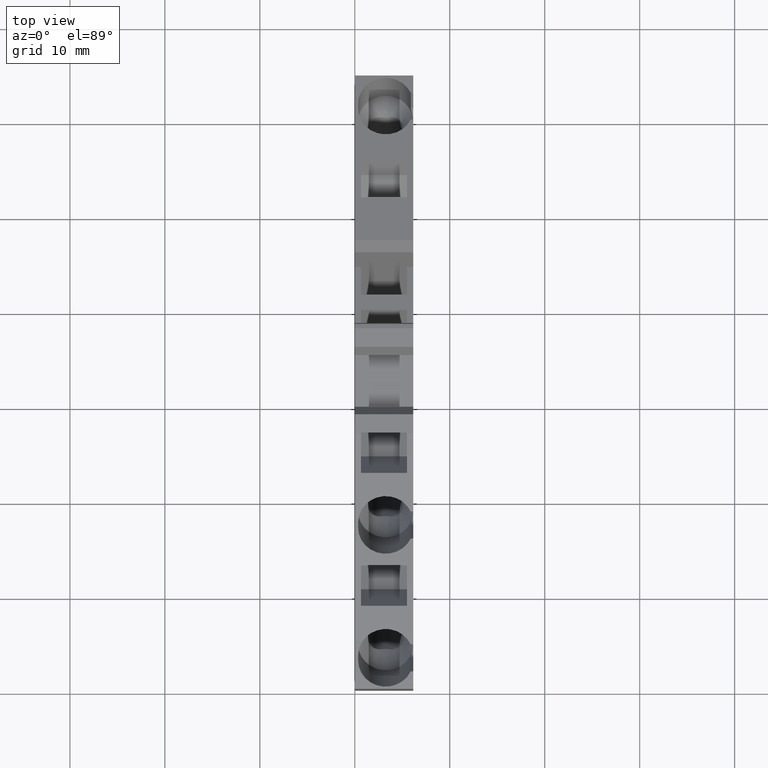
[diagram: clean part render]
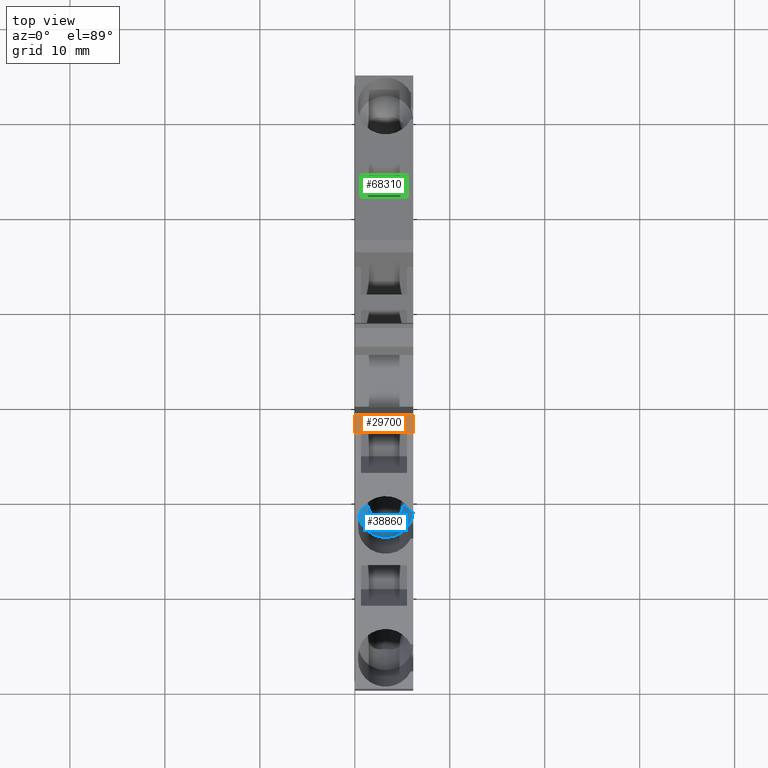
[diagram: same view with three faces highlighted in distinct colors, each labeled with its STEP entity id]
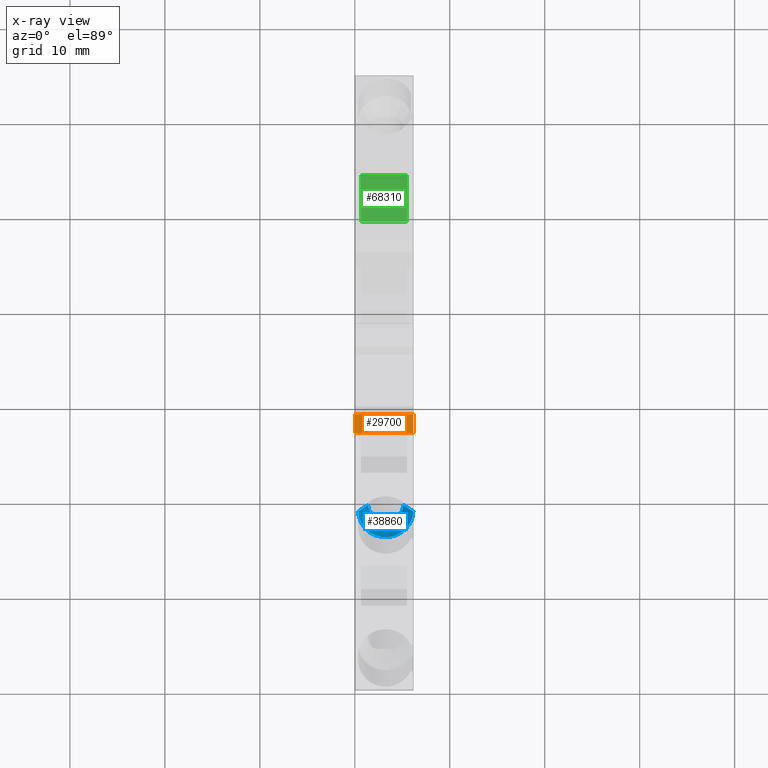
[diagram: x-ray of the same camera — body ghosted, the three highlighted faces saturated]
A machine part, top view with three faces highlighted in distinct colors.
The next image is the same camera in x-ray (body ghosted, the three faces saturated) — at least one of them is partly hidden behind the body in this view.
Their STEP definitions:

[orange] entity #29700 — the highlighted planar face has unit normal (-0, -0, 1).
#1230=CARTESIAN_POINT('',(-69.1244051443028,51.321087608707,
0.949999999999962));
#1240=DIRECTION('',(-1.20681242776754E-13,1.,-7.56143785790124E-15));
#1250=DIRECTION('',(1.,1.20681242776754E-13,-9.12712067340711E-28));
#1260=AXIS2_PLACEMENT_3D('',#1230,#1240,#1250);
#1270=PLANE('',#1260);
#6460=CARTESIAN_POINT('',(-80.1084383318848,51.3210876087057,
0.949999999999994));
#6470=VERTEX_POINT('',#6460);
#6500=CARTESIAN_POINT('',(-57.0914399670214,51.3210876087085,
0.949999999999994));
#6510=DIRECTION('',(-1.,-1.20681242776754E-13,0.));
#6520=VECTOR('',#6510,1.);
#6530=LINE('',#6500,#6520);
#6540=CARTESIAN_POINT('',(-78.1430649812728,51.321087608706,
0.949999999999994));
#6550=VERTEX_POINT('',#6540);
#6560=EDGE_CURVE('',#6550,#6470,#6530,.T.);
#12610=CARTESIAN_POINT('',(-78.1430649812728,51.3210876087059,
0.949999999999993));
#12620=DIRECTION('',(0.,7.56143785790124E-15,1.));
#12630=VECTOR('',#12620,1.);
#12640=LINE('',#12610,#12630);
#12650=CARTESIAN_POINT('',(-78.1430649812728,51.3210876087059,
-5.20000000000001));
#12660=VERTEX_POINT('',#12650);
#12670=EDGE_CURVE('',#12660,#6550,#12640,.T.);
#17700=CARTESIAN_POINT('',(-80.1084383318847,51.3210876087057,
-5.20000000000001));
#17710=VERTEX_POINT('',#17700);
#17740=CARTESIAN_POINT('',(-80.1084383318847,51.3210876087057,
0.949999999999993));
#17750=DIRECTION('',(-1.4415468661261E-31,7.56143785790124E-15,1.));
#17760=VECTOR('',#17750,1.);
#17770=LINE('',#17740,#17760);
#17780=CARTESIAN_POINT('',(-80.1084383318847,51.3210876087057,
-4.55000000000002));
#17790=VERTEX_POINT('',#17780);
#17800=EDGE_CURVE('',#17710,#17790,#17770,.T.);
#18020=CARTESIAN_POINT('',(-80.1084383318847,51.3210876087057,
0.299999999999982));
#18030=VERTEX_POINT('',#18020);
#18060=EDGE_CURVE('',#18030,#6470,#17770,.T.);
#29360=ORIENTED_EDGE('',*,*,#6560,.F.);
#29370=ORIENTED_EDGE('',*,*,#18060,.T.);
#29380=CARTESIAN_POINT('',(-57.0914399670214,51.3210876087085,
0.299999999999982));
#29390=DIRECTION('',(1.,1.20681242776754E-13,0.));
#29400=VECTOR('',#29390,1.);
#29410=LINE('',#29380,#29400);
#29420=CARTESIAN_POINT('',(-80.0565019597555,51.3210876087057,
0.299999999999982));
#29430=VERTEX_POINT('',#29420);
#29440=EDGE_CURVE('',#18030,#29430,#29410,.T.);
#29450=ORIENTED_EDGE('',*,*,#29440,.F.);
#29460=CARTESIAN_POINT('',(-80.0565019597555,51.3210876087057,
0.949999999999993));
#29470=DIRECTION('',(2.73193390181252E-15,-7.56143785790091E-15,-1.));
#29480=VECTOR('',#29470,1.);
#29490=LINE('',#29460,#29480);
#29500=CARTESIAN_POINT('',(-80.0565019597555,51.3210876087057,
-4.55000000000002));
#29510=VERTEX_POINT('',#29500);
#29520=EDGE_CURVE('',#29430,#29510,#29490,.T.);
#29530=ORIENTED_EDGE('',*,*,#29520,.F.);
#29540=CARTESIAN_POINT('',(-57.0914399670214,51.3210876087084,
-4.55000000000002));
#29550=DIRECTION('',(1.,1.20681242776754E-13,0.));
#29560=VECTOR('',#29550,1.);
#29570=LINE('',#29540,#29560);
#29580=EDGE_CURVE('',#17790,#29510,#29570,.T.);
#29590=ORIENTED_EDGE('',*,*,#29580,.T.);
#29600=ORIENTED_EDGE('',*,*,#17800,.T.);
#29610=CARTESIAN_POINT('',(-57.0914399670214,51.3210876087084,
-5.20000000000001));
#29620=DIRECTION('',(-1.,-1.20681242776754E-13,0.));
#29630=VECTOR('',#29620,1.);
#29640=LINE('',#29610,#29630);
#29650=EDGE_CURVE('',#12660,#17710,#29640,.T.);
#29660=ORIENTED_EDGE('',*,*,#29650,.T.);
#29670=ORIENTED_EDGE('',*,*,#12670,.F.);
#29680=EDGE_LOOP('',(#29670,#29660,#29600,#29590,#29530,#29450,#29370,
#29360));
#29690=FACE_OUTER_BOUND('',#29680,.T.);
#29700=ADVANCED_FACE('',(#29690),#1270,.T.);

[blue] entity #38860 — the highlighted conical surface has half-angle 28.301 deg.
#6050=CARTESIAN_POINT('',(-88.2106123818847,42.7319952275153,
0.949999999999994));
#6060=VERTEX_POINT('',#6050);
#9990=CARTESIAN_POINT('',(-88.7586534182273,44.2377255998011,
1.81281181189989));
#10000=DIRECTION('',(-0.30113885178948,0.827372195412126,
0.474099823035014));
#10010=VECTOR('',#10000,7.93675008737977);
#10020=LINE('',#9990,#10010);
#10030=CARTESIAN_POINT('',(-87.5436731023995,40.8995946169828,
-0.100000000000005));
#10040=VERTEX_POINT('',#10030);
#10050=EDGE_CURVE('',#10040,#6060,#10020,.T.);
#10500=CARTESIAN_POINT('',(-88.2106123818846,42.7319952275152,
-4.84999999999997));
#10510=VERTEX_POINT('',#10500);
#13030=CARTESIAN_POINT('',(-87.5436731023995,40.8995946169828,-3.8));
#13040=VERTEX_POINT('',#13030);
#25780=CARTESIAN_POINT('',(-88.3985509060345,42.6635911988528,
0.943095228298419));
#25790=VERTEX_POINT('',#25780);
#25820=CARTESIAN_POINT('',(-88.2106123818847,42.7319952275153,
-1.95000000000001));
#25830=DIRECTION('',(0.342020143325655,-0.939692620785913,
3.57099154978097E-15));
#25840=DIRECTION('',(1.15466216469529E-15,-3.37990717439375E-15,-1.));
#25850=AXIS2_PLACEMENT_3D('',#25820,#25830,#25840);
#25860=CIRCLE('',#25850,2.9);
#25870=EDGE_CURVE('',#6060,#25790,#25860,.T.);
#26060=CARTESIAN_POINT('',(-88.2106123818846,42.7319952275153,
-1.95000000000001));
#26070=DIRECTION('',(-0.342020143325662,0.939692620785911,
-3.52120158727582E-15));
#26080=DIRECTION('',(-0.939692620785911,-0.342020143325662,0.));
#26090=AXIS2_PLACEMENT_3D('',#26060,#26070,#26080);
#26100=CIRCLE('',#26090,2.9);
#26110=EDGE_CURVE('',#10510,#25790,#26100,.T.);
#28420=CARTESIAN_POINT('',(-88.7586534182272,44.2377255998011,
-5.71281181189992));
#28430=DIRECTION('',(-0.301138851789491,0.827372195412119,
-0.474099823035021));
#28440=VECTOR('',#28430,7.93675008737977);
#28450=LINE('',#28420,#28440);
#28460=EDGE_CURVE('',#13040,#10510,#28450,.T.);
#35080=CARTESIAN_POINT('',(-88.4445002090498,39.1350803711006,-2.35));
#35090=DIRECTION('',(0.939692620785908,0.342020143325669,
-7.09688205487581E-17));
#35100=DIRECTION('',(1.17560485838368E-15,-3.43744675240515E-15,-1.));
#35110=AXIS2_PLACEMENT_3D('',#35080,#35090,#35100);
#35120=PLANE('',#35110);
#35270=CARTESIAN_POINT('',(-88.6865572281765,39.8001265653745,
-1.55000000002298));
#35280=VERTEX_POINT('',#35270);
#35310=CARTESIAN_POINT('',(-88.7586534182272,44.2377255998011,
-1.95000000000002));
#35320=DIRECTION('',(-0.342020143325666,0.939692620785909,
-3.17747699199041E-15));
#35330=DIRECTION('',(1.15466216469529E-15,-3.37990717439375E-15,-1.));
#35340=AXIS2_PLACEMENT_3D('',#35310,#35320,#35330);
#35350=CONICAL_SURFACE('',#35340,3.76281181189991,0.493941368919582);
#35360=CARTESIAN_POINT('',(-88.6865572281739,39.8001265653754,
-1.54999999999891));
#35370=CARTESIAN_POINT('',(-88.6839336827886,39.7929184336706,
-1.56553194654473));
#35380=CARTESIAN_POINT('',(-88.6814188134081,39.7860088868237,
-1.58126165919315));
#35390=CARTESIAN_POINT('',(-88.6790297514269,39.7794449929765,
-1.59716996426377));
#35400=CARTESIAN_POINT('',(-88.6766406947131,39.7728811136018,
-1.61307823425879));
#35410=CARTESIAN_POINT('',(-88.6743775030536,39.7666630456214,
-1.62916493889792));
#35420=CARTESIAN_POINT('',(-88.6722564708139,39.7608355574369,
-1.64540833484184));
#35430=CARTESIAN_POINT('',(-88.6701354404669,39.7550080744523,
-1.66165171629174));
#35440=CARTESIAN_POINT('',(-88.6681566419944,39.7495713703315,
-1.67805150462907));
#35450=CARTESIAN_POINT('',(-88.6663349756648,39.7445663832251,
-1.6945835391543));
#35460=CARTESIAN_POINT('',(-88.6645133070314,39.7395613897893,
-1.71111559458636));
#35470=CARTESIAN_POINT('',(-88.6628488505381,39.7349883331785,
-1.72777945344223));
#35480=CARTESIAN_POINT('',(-88.6613545104627,39.7308826675643,
-1.74454930083497));
#35490=CARTESIAN_POINT('',(-88.6598601636992,39.7267769835748,
-1.76131922328249));
#35500=CARTESIAN_POINT('',(-88.6585360070672,39.7231388931093,
-1.77819452402193));
#35510=CARTESIAN_POINT('',(-88.6573924108137,39.7199968882257,
-1.79514934468555));
#35520=CARTESIAN_POINT('',(-88.6562486485195,39.7168544271491,
-1.81210662704778));
#35530=CARTESIAN_POINT('',(-88.6552860155489,39.7142096147985,
-1.82913255848731));
#35540=CARTESIAN_POINT('',(-88.6545106934542,39.7120794348503,
-1.84623280338465));
#35550=CARTESIAN_POINT('',(-88.6537348842863,39.7099479166799,
-1.86334379100214));
#35560=CARTESIAN_POINT('',(-88.6531449313298,39.7083270342531,
-1.88057471594065));
#35570=CARTESIAN_POINT('',(-88.6527500619597,39.7072421395751,
-1.89788129328766));
#35580=CARTESIAN_POINT('',(-88.6523551984306,39.7061572609453,
-1.91518761462923));
#35590=CARTESIAN_POINT('',(-88.6521555293132,39.7056086745538,
-1.93256807225222));
#35600=CARTESIAN_POINT('',(-88.6521552962733,39.705608034282,
-1.94996942840299));
#35610=CARTESIAN_POINT('',(-88.652155063235,39.7056073940145,
-1.96737066813759));
#35620=CARTESIAN_POINT('',(-88.6523542932978,39.7061547741134,
-1.98479111945756));
#35630=CARTESIAN_POINT('',(-88.6527513253217,39.7072456106338,
-2.00217404877538));
#35640=CARTESIAN_POINT('',(-88.6531483575441,39.7083364476998,
-2.01955698678781));
#35650=CARTESIAN_POINT('',(-88.6537431308983,39.70997057406,
-2.0369007609037));
#35660=CARTESIAN_POINT('',(-88.6545280987166,39.712127255416,
-2.05415037739948));
#35670=CARTESIAN_POINT('',(-88.6553130722074,39.7142839523567,
-2.07140011854618));
#35680=CARTESIAN_POINT('',(-88.6562881102604,39.7169628473903,
-2.08855429549158));
#35690=CARTESIAN_POINT('',(-88.6574406499648,39.7201294242032,
-2.10556421771372));
#35700=CARTESIAN_POINT('',(-88.6585932112739,39.7232960603746,
-2.12257445879291));
#35710=CARTESIAN_POINT('',(-88.6599230783093,39.7269498400252,
-2.13943903410365));
#35720=CARTESIAN_POINT('',(-88.6614142641629,39.731046839486,
-2.15612020019449));
#35730=CARTESIAN_POINT('',(-88.6629057942265,39.7351447846563,
-2.17280521679534));
#35740=CARTESIAN_POINT('',(-88.6645646266701,39.7397023893477,
-2.18937482190728));
#35750=CARTESIAN_POINT('',(-88.6663791041845,39.7446876253465,
-2.20581663320075));
#35760=CARTESIAN_POINT('',(-88.6681935766493,39.7496728474718,
-2.22225839873787));
#35770=CARTESIAN_POINT('',(-88.670163653771,39.7550855898683,
-2.23857212368332));
#35780=CARTESIAN_POINT('',(-88.6722765366425,39.7608906878478,
-2.25474529719056));
#35790=CARTESIAN_POINT('',(-88.6765023539528,39.7725010254867,
-2.28709203892931));
#35800=CARTESIAN_POINT('',(-88.6812996460207,39.7856814771177,
-2.31887399563623));
#35810=CARTESIAN_POINT('',(-88.6865572281833,39.8001265653904,
-2.34999999999969));
#35820=B_SPLINE_CURVE_WITH_KNOTS('',3,(#35360,#35370,#35380,#35390,
#35400,#35410,#35420,#35430,#35440,#35450,#35460,#35470,#35480,#35490,
#35500,#35510,#35520,#35530,#35540,#35550,#35560,#35570,#35580,#35590,
#35600,#35610,#35620,#35630,#35640,#35650,#35660,#35670,#35680,#35690,
#35700,#35710,#35720,#35730,#35740,#35750,#35760,#35770,#35780,#35790,
#35800,#35810),.UNSPECIFIED.,.F.,.F.,(4,3,3,3,3,3,3,3,3,3,3,3,3,3,3,4),(
0.,0.0520562471891187,0.104206738623829,0.156346818535445,
0.208398282271411,0.260315289942428,0.312097472864514,0.364011053994154,
0.416137834399924,0.468381223136949,0.52062588421083,0.572748889666363,
0.624630450345578,0.676410451165593,0.728294526185148,0.832336805167444)
,.UNSPECIFIED.);
#35830=SURFACE_CURVE('',#35820,(#35120,#35350),.CURVE_3D.);
#35840=CARTESIAN_POINT('',(-88.6865572281738,39.8001265653671,
-2.34999999996126));
#35850=VERTEX_POINT('',#35840);
#35860=EDGE_CURVE('',#35280,#35850,#35830,.T.);
#36850=CARTESIAN_POINT('',(-78.4158144198055,15.821008998583,
-1.54999999999991));
#36860=DIRECTION('',(0.342020143325669,-0.939692620785908,
3.63598040564739E-15));
#36870=DIRECTION('',(-0.939692620785908,-0.342020143325669,0.));
#36880=AXIS2_PLACEMENT_3D('',#36850,#36860,#36870);
#36890=CYLINDRICAL_SURFACE('',#36880,1.45);
#36900=CARTESIAN_POINT('',(-87.5436731024272,40.8995946170589,
-0.0999999999782113));
#36910=CARTESIAN_POINT('',(-87.5669083153754,40.8911376911589,
-0.0999999999782115));
#36920=CARTESIAN_POINT('',(-87.5901157656968,40.8824204471941,
-0.10063291356414));
#36930=CARTESIAN_POINT('',(-87.6132471793451,40.8734572658746,
-0.10190577915668));
#36940=CARTESIAN_POINT('',(-87.6363783882159,40.8644941639042,
-0.103178633480812));
#36950=CARTESIAN_POINT('',(-87.6594327275864,40.8552854178907,
-0.105091463278277));
#36960=CARTESIAN_POINT('',(-87.6823582381823,40.8458489745759,
-0.107645233738802));
#36970=CARTESIAN_POINT('',(-87.7052836713283,40.8364125631404,
-0.110198995571844));
#36980=CARTESIAN_POINT('',(-87.7280797458687,40.8267486571717,
-0.113393672930841));
#36990=CARTESIAN_POINT('',(-87.7506937427362,40.816877965957,
-0.117223556163721));
#37000=CARTESIAN_POINT('',(-87.7733077103922,40.8070072874928,
-0.121053434449381));
#37010=CARTESIAN_POINT('',(-87.7957390695215,40.7969300481516,
-0.125518441189416));
#37020=CARTESIAN_POINT('',(-87.8179361817579,40.7866691305977,
-0.130606052930429));
#37030=CARTESIAN_POINT('',(-87.8401333097038,40.7764082057818,
-0.135693668272076));
#37040=CARTESIAN_POINT('',(-87.8620956772163,40.7659638407178,
-0.141403762421673));
#37050=CARTESIAN_POINT('',(-87.8837744042988,40.7553603915994,
-0.147717295413073));
#37060=CARTESIAN_POINT('',(-87.9054531901994,40.744756913712,
-0.154030845534177));
#37070=CARTESIAN_POINT('',(-87.9268478560114,40.7339945953176,
-0.160947664930302));
#37080=CARTESIAN_POINT('',(-87.9479137948324,40.7230984592159,
-0.168442914711022));
#37090=CARTESIAN_POINT('',(-87.9689798351842,40.7122022705984,
-0.175938200616388));
#37100=CARTESIAN_POINT('',(-87.9897167180287,40.7011725052479,
-0.184011711140266));
#37110=CARTESIAN_POINT('',(-88.010085458329,40.6900339350926,
-0.192633943912855));
#37120=CARTESIAN_POINT('',(-88.0304444808141,40.6789006790886,
-0.20125206306506));
#37130=CARTESIAN_POINT('',(-88.0504583832968,40.667647604041,
-0.210425088626791));
#37140=CARTESIAN_POINT('',(-88.0702080678938,40.6562268883079,
-0.220189655102602));
#37150=CARTESIAN_POINT('',(-88.0899483771773,40.6448115940686,
-0.229949586270404));
#37160=CARTESIAN_POINT('',(-88.109382764749,40.6332517950369,
-0.240282652054943));
#37170=CARTESIAN_POINT('',(-88.1284722412412,40.6215674830271,
-0.251168960098915));
#37180=CARTESIAN_POINT('',(-88.1475616551522,40.6098832093221,
-0.262055232454126));
#37190=CARTESIAN_POINT('',(-88.1663058002978,40.5980746203543,
-0.273494580871365));
#37200=CARTESIAN_POINT('',(-88.1846668755776,40.5861634806103,
-0.285461580350175));
#37210=CARTESIAN_POINT('',(-88.203027921975,40.5742523596028,
-0.297428561004698));
#37220=CARTESIAN_POINT('',(-88.2210055552495,40.5622388970347,
-0.309922987167482));
#37230=CARTESIAN_POINT('',(-88.2385645728759,40.5501460286919,
-0.322914282910818));
#37240=CARTESIAN_POINT('',(-88.2561235908413,40.5380531601157,
-0.335905578904979));
#37250=CARTESIAN_POINT('',(-88.2732636751665,40.5258810992239,
-0.349393508224076));
#37260=CARTESIAN_POINT('',(-88.2899533726966,40.5136533363534,
-0.363342994385398));
#37270=CARTESIAN_POINT('',(-88.3066430962574,40.5014255544112,
-0.377292502303625));
#37280=CARTESIAN_POINT('',(-88.3228821485027,40.4891422819093,
-0.391703308796236));
#37290=CARTESIAN_POINT('',(-88.3386437285916,40.476826933755,
-0.406536726936289));
#37300=CARTESIAN_POINT('',(-88.3544053577937,40.4645115472261,
-0.421370191297354));
#37310=CARTESIAN_POINT('',(-88.3696892700195,40.4521642889113,
-0.436625995630711));
#37320=CARTESIAN_POINT('',(-88.3844739830607,40.4398078504404,
-0.452262957079352));
#37330=CARTESIAN_POINT('',(-88.3992649109841,40.4274462178335,
-0.467906491660108));
#37340=CARTESIAN_POINT('',(-88.413531024602,40.4150979384384,
-0.483901692312404));
#37350=CARTESIAN_POINT('',(-88.427328004405,40.4027204875086,
-0.500290514676759));
#37360=CARTESIAN_POINT('',(-88.4411320747439,40.3903366755664,
-0.516687759575227));
#37370=CARTESIAN_POINT('',(-88.4544836326206,40.3779068567397,
-0.533502465153732));
#37380=CARTESIAN_POINT('',(-88.4673614436251,40.365447472864,
-0.550706286338582));
#37390=CARTESIAN_POINT('',(-88.4802392155586,40.3529881267899,
-0.567910055327353));
#37400=CARTESIAN_POINT('',(-88.4926430702684,40.3404993517616,
-0.585502762796131));
#37410=CARTESIAN_POINT('',(-88.5045535604694,40.3279986499541,
-0.603452383217878));
#37420=CARTESIAN_POINT('',(-88.5164640286944,40.3154979712115,
-0.621401970520973));
#37430=CARTESIAN_POINT('',(-88.5278809766594,40.3029855078733,
-0.639708269371854));
#37440=CARTESIAN_POINT('',(-88.5387876133543,40.2904793630033,
-0.658336094221533));
#37450=CARTESIAN_POINT('',(-88.5496942419102,40.277973227466,
-0.676963905170061));
#37460=CARTESIAN_POINT('',(-88.5600904223522,40.2654735539983,
-0.695913024205661));
#37470=CARTESIAN_POINT('',(-88.5699626744589,40.2529986132457,
-0.715145736712213));
#37480=CARTESIAN_POINT('',(-88.5798349294219,40.2405236688838,
-0.73437845478329));
#37490=CARTESIAN_POINT('',(-88.5891831407785,40.2280735985371,
-0.753894538787913));
#37500=CARTESIAN_POINT('',(-88.5979975935115,40.215666433673,
-0.773654463276853));
#37510=CARTESIAN_POINT('',(-88.6068120576669,40.2032592527308,
-0.793414413372029));
#37520=CARTESIAN_POINT('',(-88.6150926710124,40.1908951132882,
-0.813417972867382));
#37530=CARTESIAN_POINT('',(-88.6228337519165,40.1785914234656,
-0.833624597680463));
#37540=CARTESIAN_POINT('',(-88.6305748507178,40.1662877051969,
-0.853831269211033));
#37550=CARTESIAN_POINT('',(-88.6377763487027,40.1540445648397,
-0.87424077685061));
#37560=CARTESIAN_POINT('',(-88.6444366897621,40.1418784190787,
-0.89481241886434));
#37570=CARTESIAN_POINT('',(-88.6510992521167,40.1297082157772,
-0.915390921741825));
#37580=CARTESIAN_POINT('',(-88.6572121841929,40.1176323740222,
-0.936101588004782));
#37590=CARTESIAN_POINT('',(-88.6628009739507,40.105617003574,
-0.956989458141399));
#37600=CARTESIAN_POINT('',(-88.6683928961843,40.0935948985985,
-0.9778890357764));
#37610=CARTESIAN_POINT('',(-88.6734682141701,40.0816131546787,
-0.999001838699019));
#37620=CARTESIAN_POINT('',(-88.678020386188,40.0696841960883,
-1.02029862191304));
#37630=CARTESIAN_POINT('',(-88.6871247793511,40.0458261501695,
-1.06289241817708));
#37640=CARTESIAN_POINT('',(-88.6941337487332,40.0221800864515,
-1.10622171343024));
#37650=CARTESIAN_POINT('',(-88.6990215225219,39.99884889756,
-1.15003337593206));
#37660=CARTESIAN_POINT('',(-88.7039092691479,39.9755178383262,
-1.19384479496068));
#37670=CARTESIAN_POINT('',(-88.7066750299264,39.9525042494182,
-1.23813357698696));
#37680=CARTESIAN_POINT('',(-88.7073354398563,39.929910018346,
-1.28263183268818));
#37690=CARTESIAN_POINT('',(-88.7079958522804,39.9073157019392,
-1.32713025645175));
#37700=CARTESIAN_POINT('',(-88.7065509292552,39.8851431642103,
-1.37183310363159));
#37710=CARTESIAN_POINT('',(-88.7030618106713,39.8634862240054,
-1.41647445019776));
#37720=CARTESIAN_POINT('',(-88.7013172630327,39.8526578262352,
-1.43879497438269));
#37730=CARTESIAN_POINT('',(-88.6990623790797,39.8419583913006,
-1.46109979346834));
#37740=CARTESIAN_POINT('',(-88.6963086747149,39.8313985712186,
-1.48335689515961));
#37750=CARTESIAN_POINT('',(-88.6935536231298,39.8208335848578,
-1.50562488589962));
#37760=CARTESIAN_POINT('',(-88.6903082613107,39.8104324442074,
-1.52779308627421));
#37770=CARTESIAN_POINT('',(-88.686557228182,39.800126565387,
-1.55000000000698));
#37780=B_SPLINE_CURVE_WITH_KNOTS('',3,(#36900,#36910,#36920,#36930,
#36940,#36950,#36960,#36970,#36980,#36990,#37000,#37010,#37020,#37030,
#37040,#37050,#37060,#37070,#37080,#37090,#37100,#37110,#37120,#37130,
#37140,#37150,#37160,#37170,#37180,#37190,#37200,#37210,#37220,#37230,
#37240,#37250,#37260,#37270,#37280,#37290,#37300,#37310,#37320,#37330,
#37340,#37350,#37360,#37370,#37380,#37390,#37400,#37410,#37420,#37430,
#37440,#37450,#37460,#37470,#37480,#37490,#37500,#37510,#37520,#37530,
#37540,#37550,#37560,#37570,#37580,#37590,#37600,#37610,#37620,#37630,
#37640,#37650,#37660,#37670,#37680,#37690,#37700,#37710,#37720,#37730,
#37740,#37750,#37760,#37770),.UNSPECIFIED.,.F.,.F.,(4,3,3,3,3,3,3,3,3,3,
3,3,3,3,3,3,3,3,3,3,3,3,3,3,3,3,3,3,3,4),(0.,0.0743555749852129,
0.149007589206085,0.223855697112997,0.298786612412892,0.3736806696044,
0.448417774855967,0.522883453549961,0.597168598828251,0.671714049263338,
0.746470819433595,0.821345499879491,0.896233919713719,0.971026095550186,
1.0456110057677,1.11990593704048,1.19430240407896,1.26892770751136,
1.34371399540713,1.41858124019815,1.49344091298828,1.56819938025803,
1.64276121056498,1.71705165302732,1.79142757907284,1.94077424925286,
2.09050139518308,2.24002668112541,2.31452030455593,2.38878420540838),
.UNSPECIFIED.);
#37790=SURFACE_CURVE('',#37780,(#36890,#35350),.CURVE_3D.);
#37800=EDGE_CURVE('',#10040,#35280,#37790,.T.);
#37810=ORIENTED_EDGE('',*,*,#37800,.T.);
#37820=ORIENTED_EDGE('',*,*,#10050,.F.);
#37830=ORIENTED_EDGE('',*,*,#25870,.F.);
#37840=ORIENTED_EDGE('',*,*,#26110,.T.);
#37850=ORIENTED_EDGE('',*,*,#28460,.T.);
#37860=CARTESIAN_POINT('',(-78.4158144198055,15.821008998583,
-2.34999999999991));
#37870=DIRECTION('',(0.342020143325669,-0.939692620785908,
3.58046925441613E-15));
#37880=DIRECTION('',(-0.939692620785908,-0.342020143325669,0.));
#37890=AXIS2_PLACEMENT_3D('',#37860,#37870,#37880);
#37900=CYLINDRICAL_SURFACE('',#37890,1.45);
#37910=CARTESIAN_POINT('',(-88.6865572281824,39.8001265653886,
-2.34999999999941));
#37920=CARTESIAN_POINT('',(-88.6940887154484,39.8208191565872,
-2.39458800609437));
#37930=CARTESIAN_POINT('',(-88.6996340744898,39.8420775807983,
-2.43940608875098));
#37940=CARTESIAN_POINT('',(-88.7031145581065,39.863814637276,
-2.48420242984976));
#37950=CARTESIAN_POINT('',(-88.706595026937,39.8855516014082,
-2.52899858064061));
#37960=CARTESIAN_POINT('',(-88.7080101484219,39.9077650860223,
-2.5737683627429));
#37970=CARTESIAN_POINT('',(-88.7073220245074,39.9303595590232,
-2.61825337971097));
#37980=CARTESIAN_POINT('',(-88.706633897643,39.9529541288837,
-2.66273858738088));
#37990=CARTESIAN_POINT('',(-88.7038427663449,39.975927386963,
-2.70693434606679));
#38000=CARTESIAN_POINT('',(-88.6989517010227,39.9991815184201,
-2.75059115194932));
#38010=CARTESIAN_POINT('',(-88.6965061824023,40.0108085173931,
-2.77241942956517));
#38020=CARTESIAN_POINT('',(-88.6935363397342,40.0225055171333,
-2.79411278015358));
#38030=CARTESIAN_POINT('',(-88.690045959486,40.0342605315416,
-2.81564181801782));
#38040=CARTESIAN_POINT('',(-88.6865537964963,40.0460215499236,
-2.83718185202155));
#38050=CARTESIAN_POINT('',(-88.6825514807252,40.0578123801417,
-2.85850701468572));
#38060=CARTESIAN_POINT('',(-88.678010455145,40.069710218279,
-2.87974783509185));
#38070=CARTESIAN_POINT('',(-88.6734693921811,40.0816081543645,
-2.90098883036166));
#38080=CARTESIAN_POINT('',(-88.6683910835255,40.0936024451291,
-2.92212504970267));
#38090=CARTESIAN_POINT('',(-88.662772412934,40.1056783977633,
-2.94311726884374));
#38100=CARTESIAN_POINT('',(-88.657153757201,40.1177543184627,
-2.96410943247087));
#38110=CARTESIAN_POINT('',(-88.6509947758814,40.1299117892603,
-2.9849573829279));
#38120=CARTESIAN_POINT('',(-88.6442961627779,40.1421349783728,
-3.00562135195394));
#38130=CARTESIAN_POINT('',(-88.6375975610187,40.1543581467852,
-3.02628528598524));
#38140=CARTESIAN_POINT('',(-88.6303593849263,40.1666469135459,
-3.04676502028085));
#38150=CARTESIAN_POINT('',(-88.6225861900867,40.178984627558,
-3.06702106730771));
#38160=CARTESIAN_POINT('',(-88.6148130012338,40.1913223320681,
-3.0872770987343));
#38170=CARTESIAN_POINT('',(-88.6065048721348,40.2037088575576,
-3.10730922381107));
#38180=CARTESIAN_POINT('',(-88.5976701131313,40.2161270675959,
-3.1270790091106));
#38190=CARTESIAN_POINT('',(-88.5888353527009,40.2285452796396,
-3.14684879760285));
#38200=CARTESIAN_POINT('',(-88.5794740613727,40.2409950459233,
-3.16635603155185));
#38210=CARTESIAN_POINT('',(-88.5695980318594,40.2534590997539,
-3.18556405284194));
#38220=CARTESIAN_POINT('',(-88.5597219911438,40.2659231677224,
-3.20477209591966));
#38230=CARTESIAN_POINT('',(-88.5493313304575,40.2784013917132,
-3.22368072169217));
#38240=CARTESIAN_POINT('',(-88.5384408758521,40.290876756439,
-3.2422557094955));
#38250=CARTESIAN_POINT('',(-88.5275503975501,40.30335214831,
-3.26083073771619));
#38260=CARTESIAN_POINT('',(-88.516160260339,40.3158245517452,
-3.279071940109));
#38270=CARTESIAN_POINT('',(-88.5042876838153,40.3282776139488,
-3.29694812174058));
#38280=CARTESIAN_POINT('',(-88.4924150342252,40.3407307527913,
-3.31482441338618));
#38290=CARTESIAN_POINT('',(-88.4800602484044,40.3531642747411,
-3.33233530657479));
#38300=CARTESIAN_POINT('',(-88.4672416451803,40.3655633649331,
-3.34945372635501));
#38310=CARTESIAN_POINT('',(-88.4544206191091,40.37796479868,
-3.36657538169175));
#38320=CARTESIAN_POINT('',(-88.4410766407255,40.3903886846987,
-3.38338290248824));
#38330=CARTESIAN_POINT('',(-88.4272235184001,40.4028142146432,
-3.39983358140281));
#38340=CARTESIAN_POINT('',(-88.4133704536378,40.4152396929566,
-3.41628419196077));
#38350=CARTESIAN_POINT('',(-88.3990084250895,40.4276666318216,
-3.43237768736875));
#38360=CARTESIAN_POINT('',(-88.3841567151292,40.4400729441964,
-3.44807246001639));
#38370=CARTESIAN_POINT('',(-88.3693050443584,40.4524792238343,
-3.46376719124982));
#38380=CARTESIAN_POINT('',(-88.353963912857,40.4648646822057,
-3.47906293014947));
#38390=CARTESIAN_POINT('',(-88.3381576977634,40.4772065668509,
-3.49392040666909));
#38400=CARTESIAN_POINT('',(-88.3223515014027,40.489548436869,
-3.50877786558029));
#38410=CARTESIAN_POINT('',(-88.3060804785866,40.5018465314257,
-3.52319680437811));
#38420=CARTESIAN_POINT('',(-88.2893734953676,40.5140780304321,
-3.53714133855678));
#38430=CARTESIAN_POINT('',(-88.2726665076287,40.5263095327477,
-3.55108587650802));
#38440=CARTESIAN_POINT('',(-88.2555238477494,40.538474235922,
-3.5645557722678));
#38450=CARTESIAN_POINT('',(-88.2379780303574,40.5505498430206,
-3.57751937950666));
#38460=CARTESIAN_POINT('',(-88.220432181561,40.5626254717327,
-3.5904830099484));
#38470=CARTESIAN_POINT('',(-88.2024834873673,40.5746118048607,
-3.60294014306815));
#38480=CARTESIAN_POINT('',(-88.1841670233696,40.5864876565484,
-3.61486401109566));
#38490=CARTESIAN_POINT('',(-88.1658504966109,40.5983635489287,
-3.62678791998015));
#38500=CARTESIAN_POINT('',(-88.1471665261334,40.6101287714297,
-3.63817839254302));
#38510=CARTESIAN_POINT('',(-88.1281514010196,40.6217638317564,
-3.64901393745961));
#38520=CARTESIAN_POINT('',(-88.1091252189319,40.6334056576741,
-3.6598557830625));
#38530=CARTESIAN_POINT('',(-88.0898213784076,40.644886136607,
-3.67011568869161));
#38540=CARTESIAN_POINT('',(-88.0701060343689,40.6562858887129,
-3.67986078549139));
#38550=CARTESIAN_POINT('',(-88.0503907434053,40.6676856101299,
-3.68960585605666));
#38560=CARTESIAN_POINT('',(-88.0302837180917,40.6789912579697,
-3.69882204635529));
#38570=CARTESIAN_POINT('',(-88.0098220299398,40.690177972655,
-3.70747752795234));
#38580=CARTESIAN_POINT('',(-87.9893604321905,40.7013646379158,
-3.71613297130824));
#38590=CARTESIAN_POINT('',(-87.9685445803483,40.71243213,
-3.72422748375502));
#38600=CARTESIAN_POINT('',(-87.9474171260622,40.7233552996873,
-3.73173367105601));
#38610=CARTESIAN_POINT('',(-87.9262897223277,40.7342784432387,
-3.73923984039696));
#38620=CARTESIAN_POINT('',(-87.9048511727457,40.745057021071,
-3.74615749533978));
#38630=CARTESIAN_POINT('',(-87.8831484557071,40.7556664714546,
-3.75246481022696));
#38640=CARTESIAN_POINT('',(-87.8614457483491,40.7662759171059,
-3.75877212230077));
#38650=CARTESIAN_POINT('',(-87.8394793641039,40.7767159965708,
-3.76446894578411));
#38660=CARTESIAN_POINT('',(-87.8172991669241,40.7869635193101,
-3.76953976636961));
#38670=CARTESIAN_POINT('',(-87.79511893616,40.7972110575657,
-3.77461059463313));
#38680=CARTESIAN_POINT('',(-87.772725401497,40.8072658129019,
-3.77905531845144));
#38690=CARTESIAN_POINT('',(-87.7501696834958,40.8171066592372,
-3.782865078856));
#38700=CARTESIAN_POINT('',(-87.7276138848149,40.8269475407723,
-3.78667485288773));
#38710=CARTESIAN_POINT('',(-87.7048964126308,40.8365743078354,
-3.78984961355639));
#38720=CARTESIAN_POINT('',(-87.6820678258999,40.8459684971068,
-3.7923870815032));
#38730=CARTESIAN_POINT('',(-87.6592349474843,40.8553644524489,
-3.79492502648404));
#38740=CARTESIAN_POINT('',(-87.6363096350804,40.864520483237,
-3.7968243972872));
#38750=CARTESIAN_POINT('',(-87.6132879007625,40.8734414864661,
-3.79809197937752));
#38760=CARTESIAN_POINT('',(-87.5902467481908,40.882370014337,
-3.79936063064144));
#38770=CARTESIAN_POINT('',(-87.5670259219074,40.8910948857958,
-3.80000000000013));
#38780=CARTESIAN_POINT('',(-87.5436731023924,40.8995946169854,-3.8));
#38790=B_SPLINE_CURVE_WITH_KNOTS('',3,(#37910,#37920,#37930,#37940,
#37950,#37960,#37970,#37980,#37990,#38000,#38010,#38020,#38030,#38040,
#38050,#38060,#38070,#38080,#38090,#38100,#38110,#38120,#38130,#38140,
#38150,#38160,#38170,#38180,#38190,#38200,#38210,#38220,#38230,#38240,
#38250,#38260,#38270,#38280,#38290,#38300,#38310,#38320,#38330,#38340,
#38350,#38360,#38370,#38380,#38390,#38400,#38410,#38420,#38430,#38440,
#38450,#38460,#38470,#38480,#38490,#38500,#38510,#38520,#38530,#38540,
#38550,#38560,#38570,#38580,#38590,#38600,#38610,#38620,#38630,#38640,
#38650,#38660,#38670,#38680,#38690,#38700,#38710,#38720,#38730,#38740,
#38750,#38760,#38770,#38780),.UNSPECIFIED.,.F.,.F.,(4,3,3,3,3,3,3,3,3,3,
3,3,3,3,3,3,3,3,3,3,3,3,3,3,3,3,3,3,3,4),(0.,0.14951171967592,
0.299275723335274,0.448720978582654,0.523167822939944,0.597410794788342,
0.671858948845317,0.746546186440345,0.821380301342225,0.896269257859856,
0.971124277582014,1.04586291602843,1.12041230133509,1.19471285869293,
1.26906562522171,1.34370559059073,1.41852578235916,1.49341700607036,
1.56827247057181,1.64299232222209,1.71748841951507,1.79174381184231,
1.86622101492094,1.94095280199742,2.01582371737321,2.09071433449697,
2.1655071246509,2.24009232224528,2.31438490292032,2.38878420716569),
.UNSPECIFIED.);
#38800=SURFACE_CURVE('',#38790,(#37900,#35350),.CURVE_3D.);
#38810=EDGE_CURVE('',#35850,#13040,#38800,.T.);
#38820=ORIENTED_EDGE('',*,*,#38810,.T.);
#38830=ORIENTED_EDGE('',*,*,#35860,.T.);
#38840=EDGE_LOOP('',(#38830,#38820,#37850,#37840,#37830,#37820,#37810));
#38850=FACE_OUTER_BOUND('',#38840,.T.);
#38860=ADVANCED_FACE('',(#38850),#35350,.F.);

[green] entity #68310 — the highlighted planar face has unit normal (0, 0.4226, -0.9063).
#67010=CARTESIAN_POINT('',(-74.1658164614956,31.8906618871071,
0.299999999999984));
#67020=DIRECTION('',(0.90630778703665,0.4226182617407,
-2.34600262405793E-17));
#67030=VECTOR('',#67020,1.);
#67040=LINE('',#67010,#67030);
#67050=CARTESIAN_POINT('',(-57.6446036667263,39.5946299353164,
0.299999999999983));
#67060=VERTEX_POINT('',#67050);
#67070=CARTESIAN_POINT('',(-52.7799108207889,41.8630734639488,
0.299999999999983));
#67080=VERTEX_POINT('',#67070);
#67090=EDGE_CURVE('',#67060,#67080,#67040,.T.);
#67430=CARTESIAN_POINT('',(-57.6446036667263,39.5946299353164,
-4.55000000000002));
#67440=VERTEX_POINT('',#67430);
#67470=CARTESIAN_POINT('',(-57.6446036667263,39.5946299353164,
-4.55000000000002));
#67480=DIRECTION('',(-3.08148791101958E-33,5.55111512312578E-17,1.));
#67490=VECTOR('',#67480,1.);
#67500=LINE('',#67470,#67490);
#67510=EDGE_CURVE('',#67440,#67060,#67500,.T.);
#67760=CARTESIAN_POINT('',(-52.7799108207889,41.8630734639488,
-4.55000000000002));
#67770=VERTEX_POINT('',#67760);
#67800=CARTESIAN_POINT('',(-74.1658164614956,31.8906618871071,
-4.55000000000002));
#67810=DIRECTION('',(0.90630778703665,0.4226182617407,
-2.34600262405793E-17));
#67820=VECTOR('',#67810,1.);
#67830=LINE('',#67800,#67820);
#67840=EDGE_CURVE('',#67440,#67770,#67830,.T.);
#68040=CARTESIAN_POINT('',(-52.7799108207889,41.8630734639488,
-4.55000000000002));
#68050=DIRECTION('',(-3.08148791101958E-33,5.55111512312578E-17,1.));
#68060=VECTOR('',#68050,1.);
#68070=LINE('',#68040,#68060);
#68080=EDGE_CURVE('',#67770,#67080,#68070,.T.);
#68200=CARTESIAN_POINT('',(-52.7799108207889,41.8630734639488,
-4.55000000000002));
#68210=DIRECTION('',(0.4226182617407,-0.90630778703665,
5.03101886282581E-17));
#68220=DIRECTION('',(-0.90630778703665,-0.4226182617407,
2.34600262405793E-17));
#68230=AXIS2_PLACEMENT_3D('',#68200,#68210,#68220);
#68240=PLANE('',#68230);
#68250=ORIENTED_EDGE('',*,*,#67840,.F.);
#68260=ORIENTED_EDGE('',*,*,#68080,.F.);
#68270=ORIENTED_EDGE('',*,*,#67090,.T.);
#68280=ORIENTED_EDGE('',*,*,#67510,.T.);
#68290=EDGE_LOOP('',(#68280,#68270,#68260,#68250));
#68300=FACE_OUTER_BOUND('',#68290,.T.);
#68310=ADVANCED_FACE('',(#68300),#68240,.F.);